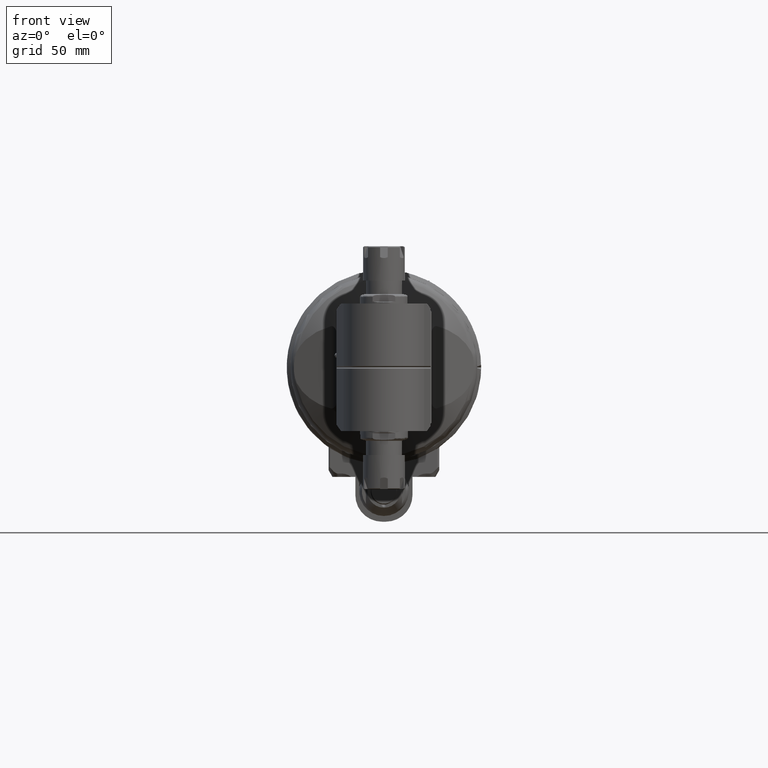
[diagram: clean part render]
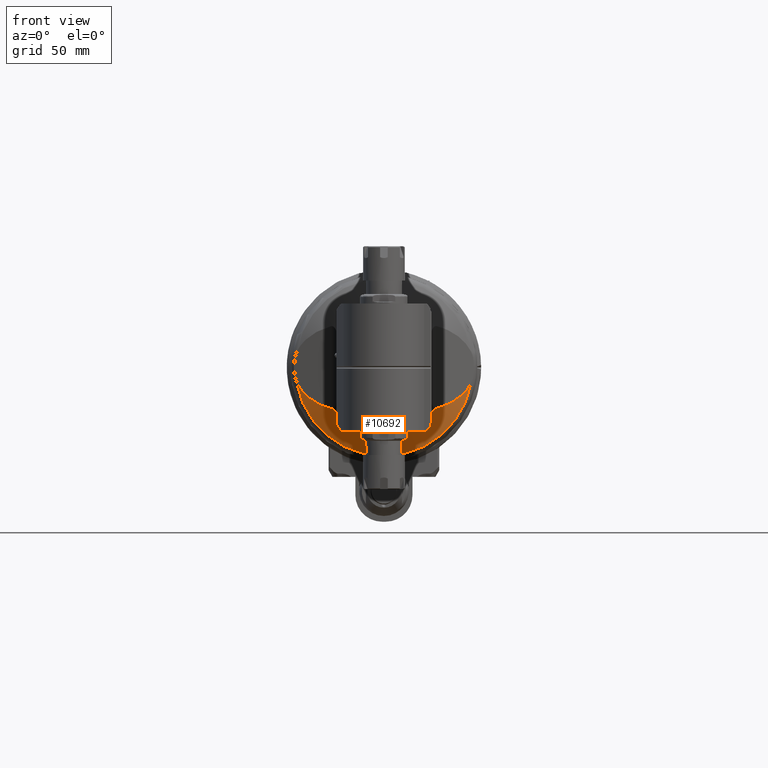
[diagram: same view with one face highlighted and labeled with its STEP entity id]
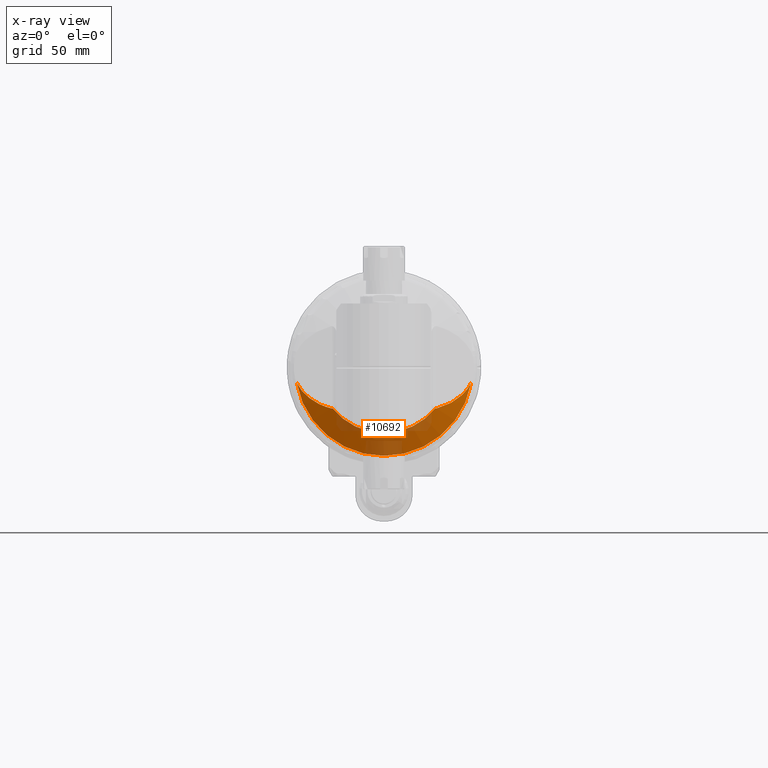
[diagram: x-ray of the same camera — body ghosted, the highlighted face saturated]
A machine part, front view. The second image highlights one B-rep face of the part: STEP entity #10692.
The next image is the same camera in x-ray: the body ghosted, the highlighted face saturated — about 35% of this face is hidden behind the body in this view.
In plain terms, the highlighted conical surface has half-angle 60 deg.
Its self-contained STEP definition (entity closure, byte-faithful):
#96=CONICAL_SURFACE('',#11472,40.5,1.0471975511966);
#234=B_SPLINE_CURVE_WITH_KNOTS('',3,(#16320,#16321,#16322,#16323,#16324,
#16325,#16326,#16327),.UNSPECIFIED.,.F.,.F.,(4,2,2,4),(2.18673200160695,
2.19364969071324,2.22722554832336,2.26058373672803),.UNSPECIFIED.);
#245=B_SPLINE_CURVE_WITH_KNOTS('',3,(#16673,#16674,#16675,#16676,#16677,
#16678,#16679,#16680),.UNSPECIFIED.,.F.,.F.,(4,2,2,4),(2.18673200160694,
2.19364969071324,2.22722554832336,2.26058373671316),.UNSPECIFIED.);
#914=FACE_OUTER_BOUND('',#1583,.T.);
#1583=EDGE_LOOP('',(#7434,#7435,#7436,#7437,#7438,#7439));
#2294=ELLIPSE('',#11396,31.1727494163443,22.7387822282697);
#2301=ELLIPSE('',#11471,31.1727494163443,22.7387822282698);
#3877=CIRCLE('',#11473,34.5);
#3878=CIRCLE('',#11474,46.5);
#4495=VERTEX_POINT('',#16287);
#4498=VERTEX_POINT('',#16309);
#4499=VERTEX_POINT('',#16329);
#4563=VERTEX_POINT('',#16670);
#4564=VERTEX_POINT('',#16672);
#4565=VERTEX_POINT('',#16692);
#5581=EDGE_CURVE('',#4495,#4498,#234,.T.);
#5582=EDGE_CURVE('',#4495,#4499,#2294,.T.);
#5681=EDGE_CURVE('',#4563,#4564,#245,.T.);
#5684=EDGE_CURVE('',#4565,#4563,#2301,.T.);
#5685=EDGE_CURVE('',#4564,#4498,#3877,.T.);
#5686=EDGE_CURVE('',#4499,#4565,#3878,.T.);
#7434=ORIENTED_EDGE('',*,*,#5685,.F.);
#7435=ORIENTED_EDGE('',*,*,#5681,.F.);
#7436=ORIENTED_EDGE('',*,*,#5684,.F.);
#7437=ORIENTED_EDGE('',*,*,#5686,.F.);
#7438=ORIENTED_EDGE('',*,*,#5582,.F.);
#7439=ORIENTED_EDGE('',*,*,#5581,.T.);
#10692=ADVANCED_FACE('',(#914),#96,.T.);
#11396=AXIS2_PLACEMENT_3D('',#16330,#12763,#12764);
#11471=AXIS2_PLACEMENT_3D('',#16703,#12941,#12942);
#11472=AXIS2_PLACEMENT_3D('',#16704,#12943,#12944);
#11473=AXIS2_PLACEMENT_3D('',#16705,#12945,#12946);
#11474=AXIS2_PLACEMENT_3D('',#16706,#12947,#12948);
#12763=DIRECTION('center_axis',(0.939692620785897,0.,0.342020143325699));
#12764=DIRECTION('ref_axis',(0.342020143325699,4.48526230226004E-15,-0.939692620785897));
#12941=DIRECTION('center_axis',(0.939692620785897,0.,-0.342020143325699));
#12942=DIRECTION('ref_axis',(-0.342020143325699,7.39186362644738E-16,-0.939692620785897));
#12943=DIRECTION('center_axis',(-1.,0.,0.));
#12944=DIRECTION('ref_axis',(0.,1.,0.));
#12945=DIRECTION('center_axis',(1.,0.,0.));
#12946=DIRECTION('ref_axis',(0.,1.,0.));
#12947=DIRECTION('center_axis',(-1.,0.,0.));
#12948=DIRECTION('ref_axis',(0.,0.177495530843392,0.984121606576455));
#16287=CARTESIAN_POINT('',(27.04205971436,21.59708585293,27.6319194267));
#16309=CARTESIAN_POINT('',(27.37157894791,21.55092563191,26.94081669898));
#16320=CARTESIAN_POINT('Ctrl Pts',(27.0420597143565,21.5970858529229,27.6319194266969));
#16321=CARTESIAN_POINT('Ctrl Pts',(27.050335084464,21.6028999944633,27.609183034189));
#16322=CARTESIAN_POINT('Ctrl Pts',(27.0588934682952,21.608065250833,27.5863128476503));
#16323=CARTESIAN_POINT('Ctrl Pts',(27.1104686239072,21.6342180863404,27.4522888820599));
#16324=CARTESIAN_POINT('Ctrl Pts',(27.1596369835571,21.6383299644524,27.3404435454438));
#16325=CARTESIAN_POINT('Ctrl Pts',(27.2573525851501,21.617390153981,27.1409621841659));
#16326=CARTESIAN_POINT('Ctrl Pts',(27.3132347012754,21.5912369054553,27.0379800163916));
#16327=CARTESIAN_POINT('Ctrl Pts',(27.3715789479091,21.5509256318965,26.940816698985));
#16329=CARTESIAN_POINT('',(20.44337571763,8.253542184218,45.7616547058));
#16330=CARTESIAN_POINT('Origin',(30.377955770746,-1.77635683940025E-14,
18.4666203381165));
#16670=CARTESIAN_POINT('',(27.04205971436,21.59708585293,-27.6319194267));
#16672=CARTESIAN_POINT('',(27.37157894783,21.55092563201,-26.94081669909));
#16673=CARTESIAN_POINT('Ctrl Pts',(27.0420597143565,21.5970858529229,-27.6319194266969));
#16674=CARTESIAN_POINT('Ctrl Pts',(27.050335084464,21.6028999944633,-27.609183034189));
#16675=CARTESIAN_POINT('Ctrl Pts',(27.0588934682952,21.608065250833,-27.5863128476503));
#16676=CARTESIAN_POINT('Ctrl Pts',(27.1104686239072,21.6342180863404,-27.4522888820599));
#16677=CARTESIAN_POINT('Ctrl Pts',(27.1596369835571,21.6383299644524,-27.3404435454438));
#16678=CARTESIAN_POINT('Ctrl Pts',(27.2573525851284,21.6173901539857,-27.1409621842102));
#16679=CARTESIAN_POINT('Ctrl Pts',(27.3132347012254,21.5912369054794,-27.0379800164833));
#16680=CARTESIAN_POINT('Ctrl Pts',(27.3715789478309,21.5509256319505,-26.9408166991152));
#16692=CARTESIAN_POINT('',(20.44337571763,8.253542184217,-45.76165470581));
#16703=CARTESIAN_POINT('Origin',(30.377955770746,0.,-18.4666203381165));
#16704=CARTESIAN_POINT('Origin',(23.90747733277,0.,0.));
#16705=CARTESIAN_POINT('Origin',(27.37157894791,0.,0.));
#16706=CARTESIAN_POINT('Origin',(20.44337571763,0.,0.));